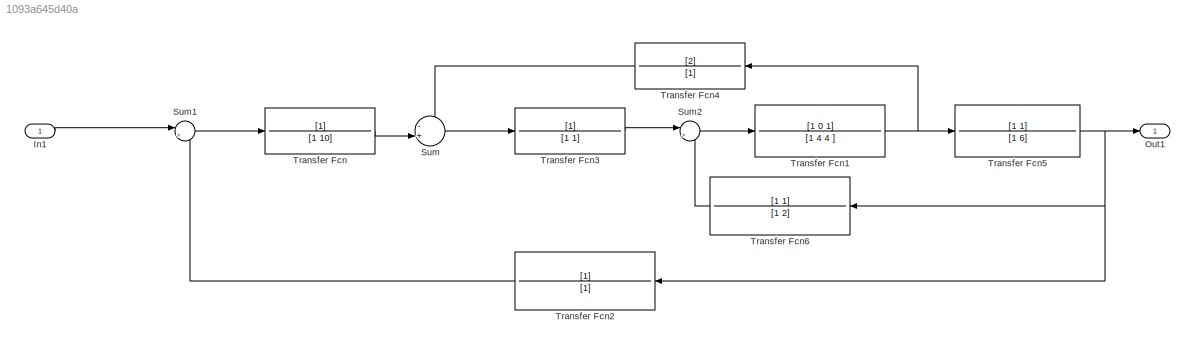
MODEL slx_1093a645d40a
KIND model
CONFIG AbsTol = auto
CONFIG EnableMultiTasking = off
CONFIG FixedStep = auto
CONFIG MaxStep = auto
CONFIG MinStep = auto
CONFIG RelTol = 1e-3
CONFIG SampleTimeConstraint = Unconstrained
CONFIG SolverName = VariableStepAuto
CONFIG StartTime = 0.0
CONFIG StopTime = 10.0
BLOCK [Inport] In1
BLOCK [Outport] Out1
BLOCK [Sum] Sum
  CollapseMode = Specified dimension
  Inputs = -+|
  NameLocation = top
  RndMeth = Round
BLOCK [Sum] Sum1
  Inputs = |+-
BLOCK [Sum] Sum2
  Inputs = |+-
BLOCK [TransferFcn] Transfer Fcn
  Denominator = [1 10]
BLOCK [TransferFcn] Transfer Fcn1
  Denominator = [1 4 4 ]
  Numerator = [1 0 1]
BLOCK [TransferFcn] Transfer Fcn2
  Denominator = [1]
  NameLocation = top
BLOCK [TransferFcn] Transfer Fcn3
  Denominator = [1 1]
BLOCK [TransferFcn] Transfer Fcn4
  Denominator = [1]
  NameLocation = top
  Numerator = [2]
BLOCK [TransferFcn] Transfer Fcn5
  Denominator = [1 6]
  Numerator = [1 1]
BLOCK [TransferFcn] Transfer Fcn6
  Denominator = [1 2]
  NameLocation = top
  Numerator = [1 1]
LINE In1:1 -> Sum1:1
LINE Sum1:1 -> Transfer Fcn:1
LINE Sum2:1 -> Transfer Fcn1:1
LINE Sum:1 -> Transfer Fcn3:1
NET Transfer Fcn1:1 -> Transfer Fcn4:1, Transfer Fcn5:1
LINE Transfer Fcn2:1 -> Sum1:2
LINE Transfer Fcn3:1 -> Sum2:1
LINE Transfer Fcn4:1 -> Sum:1
NET Transfer Fcn5:1 -> Out1:1, Transfer Fcn2:1, Transfer Fcn6:1
LINE Transfer Fcn6:1 -> Sum2:2
LINE Transfer Fcn:1 -> Sum:2
note: NET lines group one-source signal fan-out (src -> all destinations, sorted); 1:1 wires keep LINE
